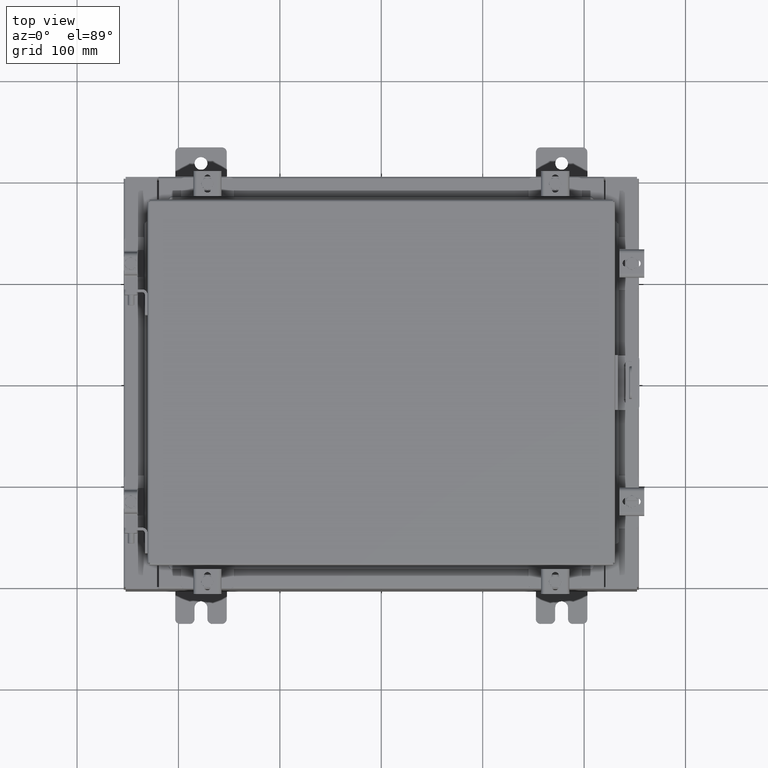
[diagram: clean part render]
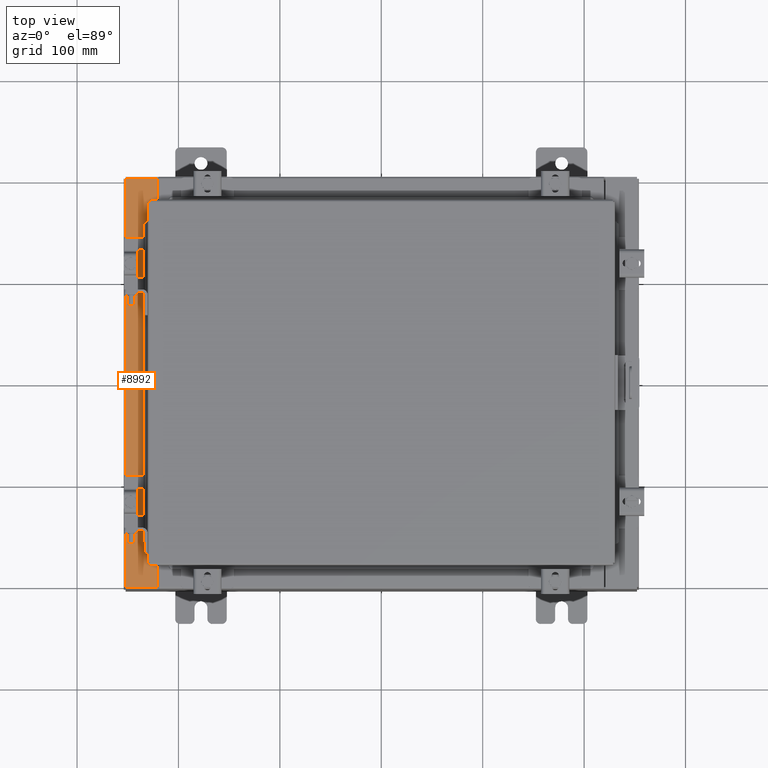
[diagram: same view with one face highlighted and labeled with its STEP entity id]
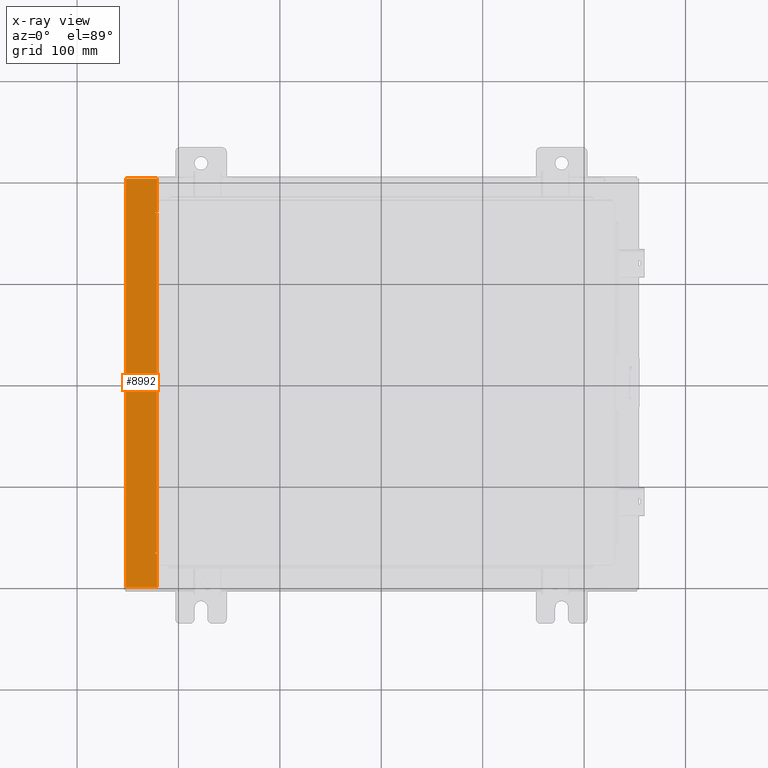
[diagram: x-ray of the same camera — body ghosted, the highlighted face saturated]
A machine part, top view. The second image highlights one B-rep face of the part: STEP entity #8992.
The next image is the same camera in x-ray: the body ghosted, the highlighted face saturated — about 0% of this face is hidden behind the body in this view.
In plain terms, the highlighted planar face has unit normal (0, 0, -1).
Its self-contained STEP definition (entity closure, byte-faithful):
#2 = LINE ( 'NONE', #4905, #3746 ) ;
#307 = LINE ( 'NONE', #6848, #8345 ) ;
#397 = CARTESIAN_POINT ( 'NONE',  ( -8.699700000000019500, -6.631100000000000000, 5.925300000000008000 ) ) ;
#977 = CIRCLE ( 'NONE', #9759, 0.01867499999999949400 ) ;
#1252 = DIRECTION ( 'NONE',  ( -1.000000000000000000, -6.146651423996189400E-032, -7.132762385546378400E-015 ) ) ;
#1627 = LINE ( 'NONE', #4990, #10163 ) ;
#2451 = VERTEX_POINT ( 'NONE', #5094 ) ;
#2580 = ORIENTED_EDGE ( 'NONE', *, *, #8320, .T. ) ;
#3238 = DIRECTION ( 'NONE',  ( -7.132762385546378400E-015, -0.0000000000000000000, 1.000000000000000000 ) ) ;
#3746 = VECTOR ( 'NONE', #6543, 39.37007874015748100 ) ;
#3762 = EDGE_CURVE ( 'NONE', #2451, #13953, #19337, .T. ) ;
#3844 = ORIENTED_EDGE ( 'NONE', *, *, #7510, .F. ) ;
#3854 = VECTOR ( 'NONE', #1252, 39.37007874015748100 ) ;
#4395 = DIRECTION ( 'NONE',  ( 1.378798528088155100E-016, 1.000000000000000000, 9.834642278393904800E-031 ) ) ;
#4523 = VERTEX_POINT ( 'NONE', #14194 ) ;
#4905 = CARTESIAN_POINT ( 'NONE',  ( -8.750050000000019400, 6.593749999999999100, 5.925300000000008900 ) ) ;
#4990 = CARTESIAN_POINT ( 'NONE',  ( -8.750050000000019400, -6.631100000000000000, 5.925300000000008900 ) ) ;
#5048 = VECTOR ( 'NONE', #16378, 39.37007874015748100 ) ;
#5094 = CARTESIAN_POINT ( 'NONE',  ( -9.912300000000021400, -7.925300000000000000, 5.925299999999999100 ) ) ;
#5133 = DIRECTION ( 'NONE',  ( 1.000000000000000000, 8.758115402030108600E-047, 7.132762385546378400E-015 ) ) ;
#5654 = CARTESIAN_POINT ( 'NONE',  ( -8.699700000000019500, 6.631100000000000000, 5.925300000000008000 ) ) ;
#6137 = LINE ( 'NONE', #7977, #18523 ) ;
#6298 = ORIENTED_EDGE ( 'NONE', *, *, #16363, .T. ) ;
#6326 = EDGE_CURVE ( 'NONE', #16718, #7300, #1627, .T. ) ;
#6488 = AXIS2_PLACEMENT_3D ( 'NONE', #12968, #3238, #14577 ) ;
#6518 = LINE ( 'NONE', #13339, #14123 ) ;
#6543 = DIRECTION ( 'NONE',  ( 1.000000000000000000, 0.0000000000000000000, 0.0000000000000000000 ) ) ;
#6670 = CARTESIAN_POINT ( 'NONE',  ( -4.252457061909003800E-014, 0.0000000000000000000, 5.925300000000070200 ) ) ;
#6848 = CARTESIAN_POINT ( 'NONE',  ( -8.699700000000019500, -4.084959092363675600E-030, 5.925300000000008000 ) ) ;
#7012 = EDGE_CURVE ( 'NONE', #7307, #13953, #12471, .T. ) ;
#7275 = CARTESIAN_POINT ( 'NONE',  ( -8.750050000000019400, -6.612425000000000000, 5.925300000000008900 ) ) ;
#7300 = VERTEX_POINT ( 'NONE', #397 ) ;
#7307 = VERTEX_POINT ( 'NONE', #8459 ) ;
#7351 = VECTOR ( 'NONE', #5133, 39.37007874015748100 ) ;
#7403 = VERTEX_POINT ( 'NONE', #15136 ) ;
#7510 = EDGE_CURVE ( 'NONE', #7403, #14481, #16219, .T. ) ;
#7660 = CARTESIAN_POINT ( 'NONE',  ( -8.712700000000019400, -6.593750000000000000, 5.925300000000008900 ) ) ;
#7977 = CARTESIAN_POINT ( 'NONE',  ( -8.712700000000019400, 6.593750000000000000, 5.925300000000008900 ) ) ;
#8289 = DIRECTION ( 'NONE',  ( 7.132762385546378400E-015, 0.0000000000000000000, -1.000000000000000000 ) ) ;
#8320 = EDGE_CURVE ( 'NONE', #2451, #4523, #19224, .T. ) ;
#8345 = VECTOR ( 'NONE', #8529, 39.37007874015748100 ) ;
#8360 = AXIS2_PLACEMENT_3D ( 'NONE', #6670, #8289, #19602 ) ;
#8459 = CARTESIAN_POINT ( 'NONE',  ( -8.699700000000019500, 7.925300000000000000, 5.925300000000008000 ) ) ;
#8517 = EDGE_LOOP ( 'NONE', ( #3844, #6298, #14575, #11085, #2580, #13385, #14315, #11278, #19499, #13593, #20677, #17916 ) ) ;
#8529 = DIRECTION ( 'NONE',  ( -4.695517192964913900E-031, 1.000000000000000000, -3.349200841466645600E-045 ) ) ;
#8681 = FACE_OUTER_BOUND ( 'NONE', #8517, .T. ) ;
#8876 = DIRECTION ( 'NONE',  ( 1.000000000000000000, 0.0000000000000000000, 0.0000000000000000000 ) ) ;
#8992 = ADVANCED_FACE ( 'NONE', ( #8681 ), #14666, .F. ) ;
#9323 = LINE ( 'NONE', #11548, #5048 ) ;
#9390 = VERTEX_POINT ( 'NONE', #7660 ) ;
#9549 = EDGE_CURVE ( 'NONE', #14481, #15392, #13509, .T. ) ;
#9759 = AXIS2_PLACEMENT_3D ( 'NONE', #7275, #18575, #8876 ) ;
#9985 = CARTESIAN_POINT ( 'NONE',  ( -4.252457061909003800E-014, -7.925300000000000000, 5.925300000000070200 ) ) ;
#10163 = VECTOR ( 'NONE', #16305, 39.37007874015748100 ) ;
#10513 = DIRECTION ( 'NONE',  ( -1.000000000000000000, -2.170286390200002500E-014, 2.170286390200002500E-014 ) ) ;
#10879 = EDGE_CURVE ( 'NONE', #11173, #9390, #6137, .T. ) ;
#11085 = ORIENTED_EDGE ( 'NONE', *, *, #3762, .F. ) ;
#11173 = VERTEX_POINT ( 'NONE', #18879 ) ;
#11227 = VECTOR ( 'NONE', #4395, 39.37007874015748100 ) ;
#11278 = ORIENTED_EDGE ( 'NONE', *, *, #15802, .F. ) ;
#11548 = CARTESIAN_POINT ( 'NONE',  ( -8.712700000000019400, -6.593750000000000000, 5.925300000000008900 ) ) ;
#12471 = LINE ( 'NONE', #20553, #3854 ) ;
#12908 = CARTESIAN_POINT ( 'NONE',  ( -8.750050000000019400, 6.593749999999999100, 5.925300000000008000 ) ) ;
#12968 = CARTESIAN_POINT ( 'NONE',  ( -8.750050000000019400, 6.612424999999998200, 5.925300000000008900 ) ) ;
#13339 = CARTESIAN_POINT ( 'NONE',  ( -8.699700000000019500, -4.084959092363675600E-030, 5.925300000000008000 ) ) ;
#13360 = EDGE_CURVE ( 'NONE', #4523, #7300, #307, .T. ) ;
#13385 = ORIENTED_EDGE ( 'NONE', *, *, #13360, .T. ) ;
#13509 = CIRCLE ( 'NONE', #6488, 0.01867499999999949400 ) ;
#13593 = ORIENTED_EDGE ( 'NONE', *, *, #10879, .F. ) ;
#13927 = EDGE_CURVE ( 'NONE', #9390, #17737, #9323, .T. ) ;
#13953 = VERTEX_POINT ( 'NONE', #16436 ) ;
#14061 = CARTESIAN_POINT ( 'NONE',  ( -8.750050000000019400, -6.593749999999999100, 5.925300000000008000 ) ) ;
#14080 = CARTESIAN_POINT ( 'NONE',  ( -9.912300000000019700, 7.925300000000000000, 5.925299999999999100 ) ) ;
#14123 = VECTOR ( 'NONE', #14947, 39.37007874015748100 ) ;
#14194 = CARTESIAN_POINT ( 'NONE',  ( -8.699700000000019500, -7.925300000000000000, 5.925300000000008000 ) ) ;
#14315 = ORIENTED_EDGE ( 'NONE', *, *, #6326, .F. ) ;
#14481 = VERTEX_POINT ( 'NONE', #20515 ) ;
#14575 = ORIENTED_EDGE ( 'NONE', *, *, #7012, .T. ) ;
#14577 = DIRECTION ( 'NONE',  ( 1.000000000000000000, 0.0000000000000000000, 0.0000000000000000000 ) ) ;
#14666 = PLANE ( 'NONE',  #8360 ) ;
#14947 = DIRECTION ( 'NONE',  ( -4.695517192964913900E-031, 1.000000000000000000, -3.349200841466645600E-045 ) ) ;
#15136 = CARTESIAN_POINT ( 'NONE',  ( -8.699700000000019500, 6.631100000000000000, 5.925300000000008000 ) ) ;
#15392 = VERTEX_POINT ( 'NONE', #12908 ) ;
#15802 = EDGE_CURVE ( 'NONE', #17737, #16718, #977, .T. ) ;
#16219 = LINE ( 'NONE', #5654, #16728 ) ;
#16233 = EDGE_CURVE ( 'NONE', #15392, #11173, #2, .T. ) ;
#16305 = DIRECTION ( 'NONE',  ( 1.000000000000000000, 0.0000000000000000000, -2.170286390200002500E-014 ) ) ;
#16363 = EDGE_CURVE ( 'NONE', #7403, #7307, #6518, .T. ) ;
#16378 = DIRECTION ( 'NONE',  ( -1.000000000000000000, 0.0000000000000000000, 0.0000000000000000000 ) ) ;
#16436 = CARTESIAN_POINT ( 'NONE',  ( -9.912300000000021400, 7.925300000000000000, 5.925299999999999100 ) ) ;
#16524 = DIRECTION ( 'NONE',  ( -0.0000000000000000000, -1.000000000000000000, -0.0000000000000000000 ) ) ;
#16718 = VERTEX_POINT ( 'NONE', #20847 ) ;
#16728 = VECTOR ( 'NONE', #10513, 39.37007874015748100 ) ;
#17737 = VERTEX_POINT ( 'NONE', #14061 ) ;
#17916 = ORIENTED_EDGE ( 'NONE', *, *, #9549, .F. ) ;
#18523 = VECTOR ( 'NONE', #16524, 39.37007874015748100 ) ;
#18575 = DIRECTION ( 'NONE',  ( -7.132762385546378400E-015, -0.0000000000000000000, 1.000000000000000000 ) ) ;
#18879 = CARTESIAN_POINT ( 'NONE',  ( -8.712700000000019400, 6.593749999999999100, 5.925300000000008900 ) ) ;
#19224 = LINE ( 'NONE', #9985, #7351 ) ;
#19337 = LINE ( 'NONE', #14080, #11227 ) ;
#19499 = ORIENTED_EDGE ( 'NONE', *, *, #13927, .F. ) ;
#19602 = DIRECTION ( 'NONE',  ( -1.000000000000000000, 0.0000000000000000000, -7.132762385546378400E-015 ) ) ;
#20515 = CARTESIAN_POINT ( 'NONE',  ( -8.750050000000019400, 6.631099999999998200, 5.925300000000008000 ) ) ;
#20553 = CARTESIAN_POINT ( 'NONE',  ( -4.252457061909003800E-014, 7.925300000000000000, 5.925300000000070200 ) ) ;
#20677 = ORIENTED_EDGE ( 'NONE', *, *, #16233, .F. ) ;
#20847 = CARTESIAN_POINT ( 'NONE',  ( -8.750050000000019400, -6.631100000000000000, 5.925300000000008000 ) ) ;